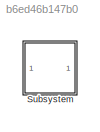
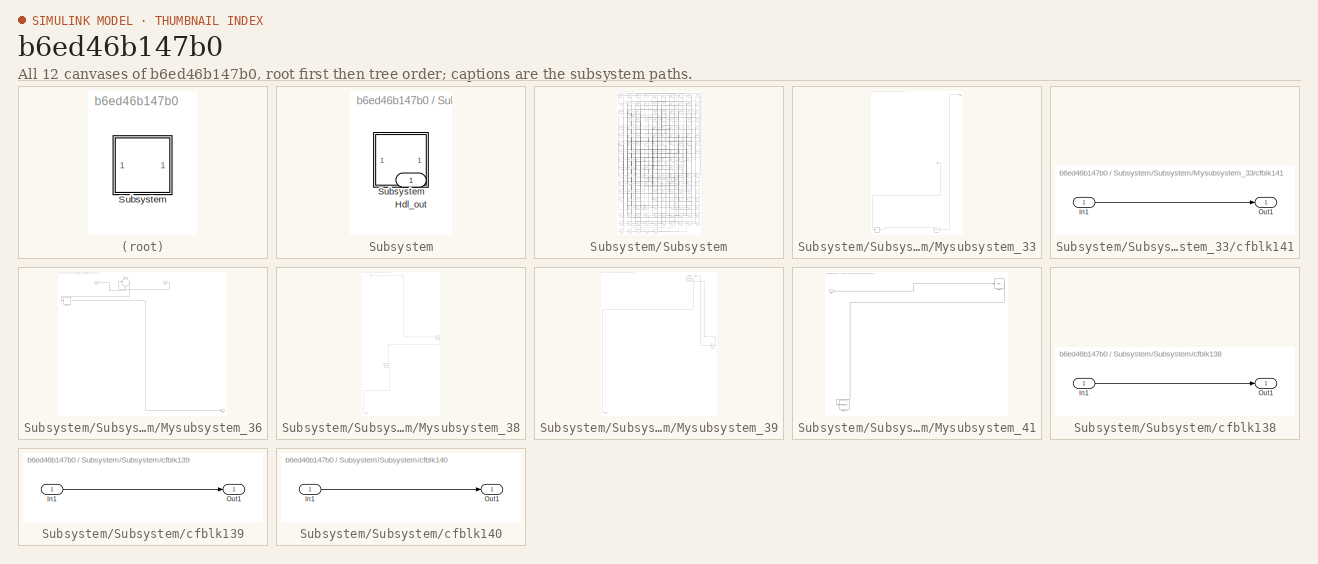
[diagram: thumbnail index - all 12 canvases of the model, root first then tree order]
MODEL slx_b6ed46b147b0
KIND model
CONFIG AbsTol = auto
CONFIG EnableMultiTasking = off
CONFIG FixedStep = auto
CONFIG MaxStep = auto
CONFIG MinStep = auto
CONFIG RelTol = 1e-3
CONFIG SampleTimeConstraint = Unconstrained
CONFIG SolverName = VariableStepAuto
CONFIG StartTime = 0.0
CONFIG StopTime = 10.0
BLOCK [SubSystem] Subsystem
BLOCK [Outport] Subsystem/Hdl_out
  OutDataTypeStr = uint8
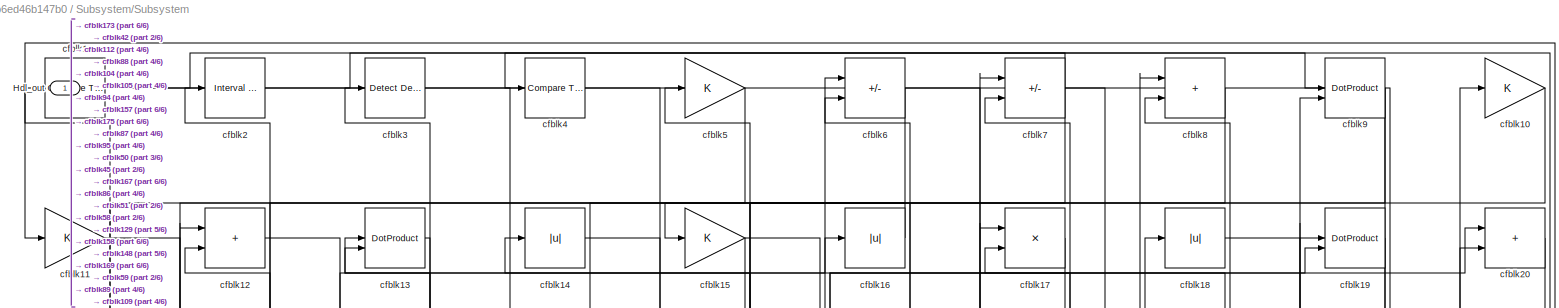
[diagram: Subsystem/Subsystem - part 1/6, full width, top band]
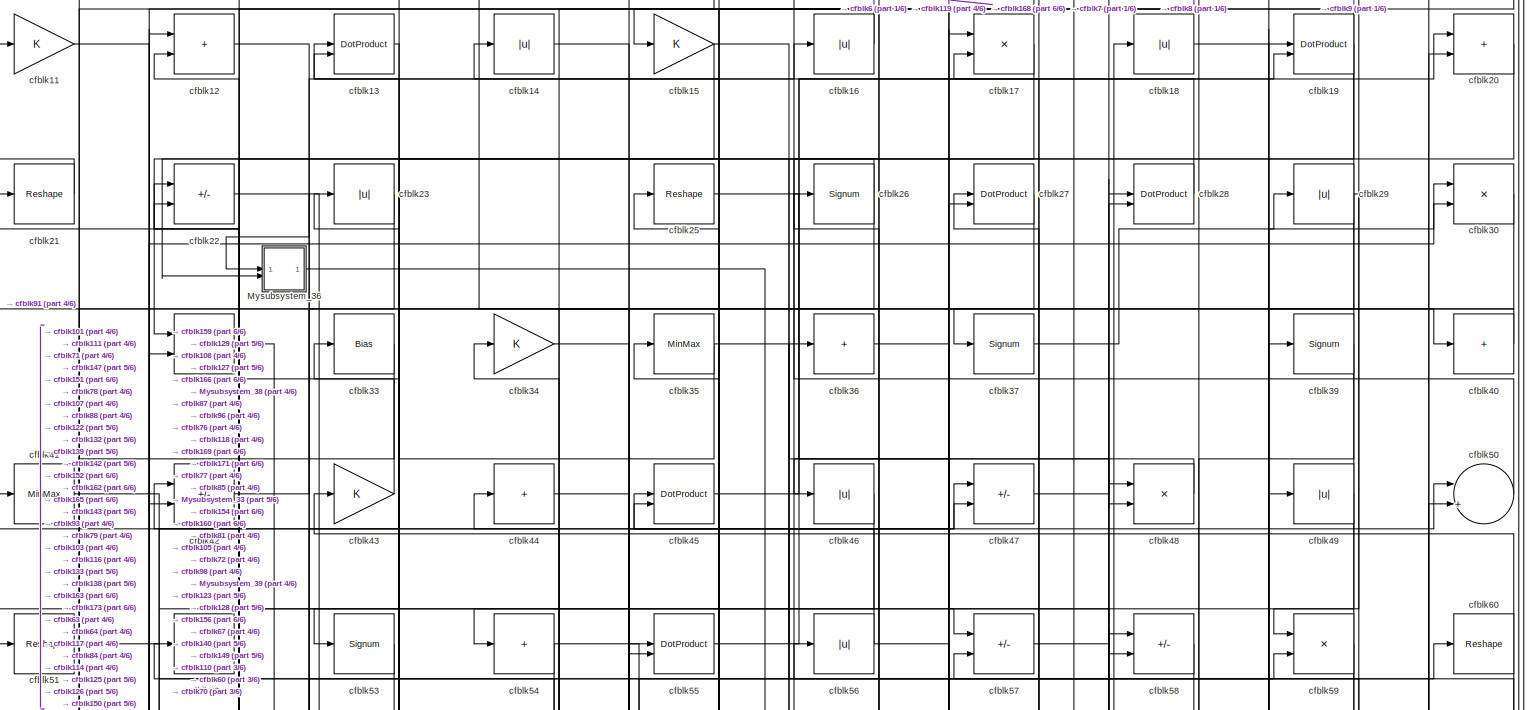
[diagram: Subsystem/Subsystem - part 2/6, full width, top band]
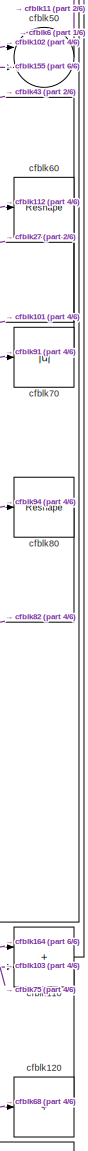
[diagram: Subsystem/Subsystem - part 3/6, middle right region]
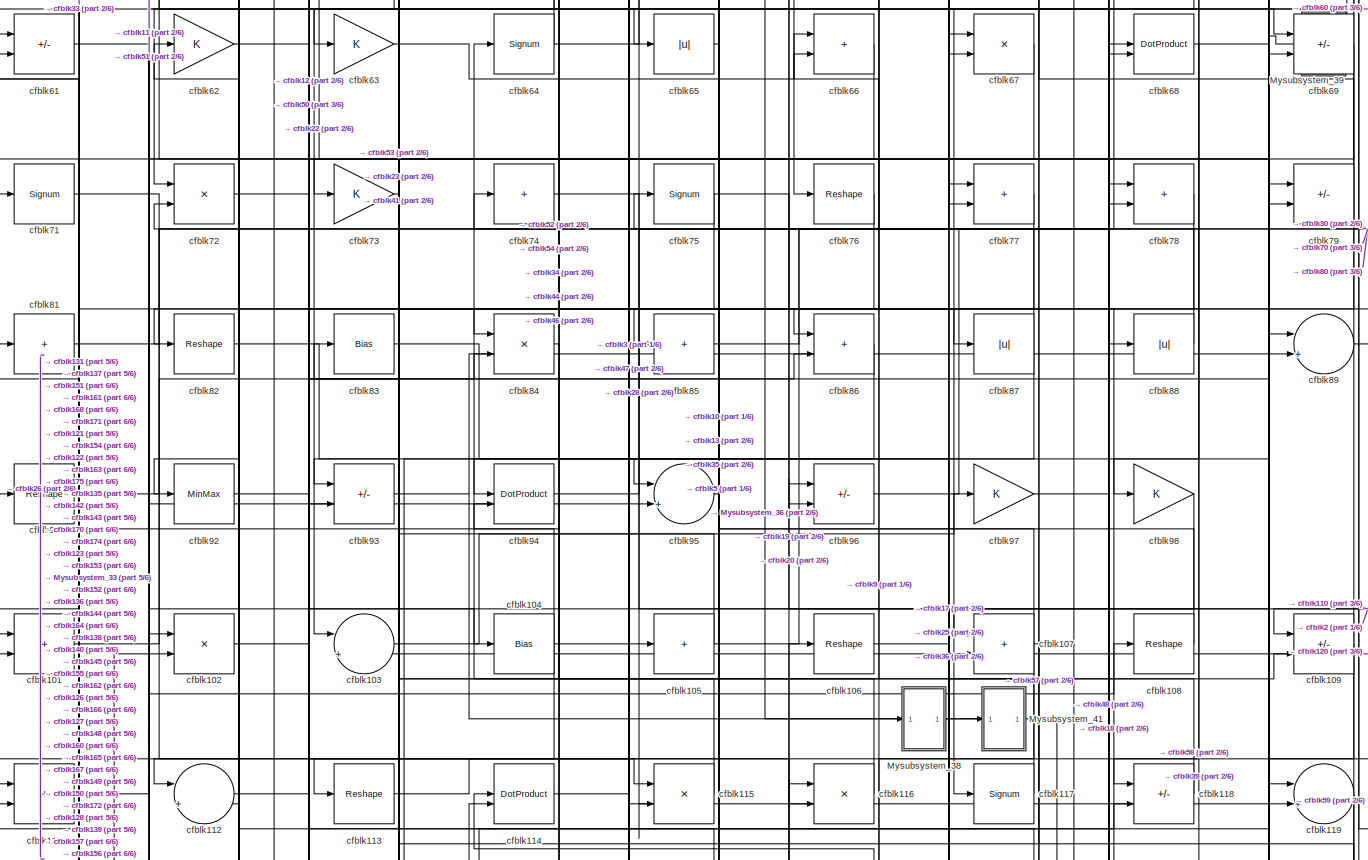
[diagram: Subsystem/Subsystem - part 4/6, full width, middle band]
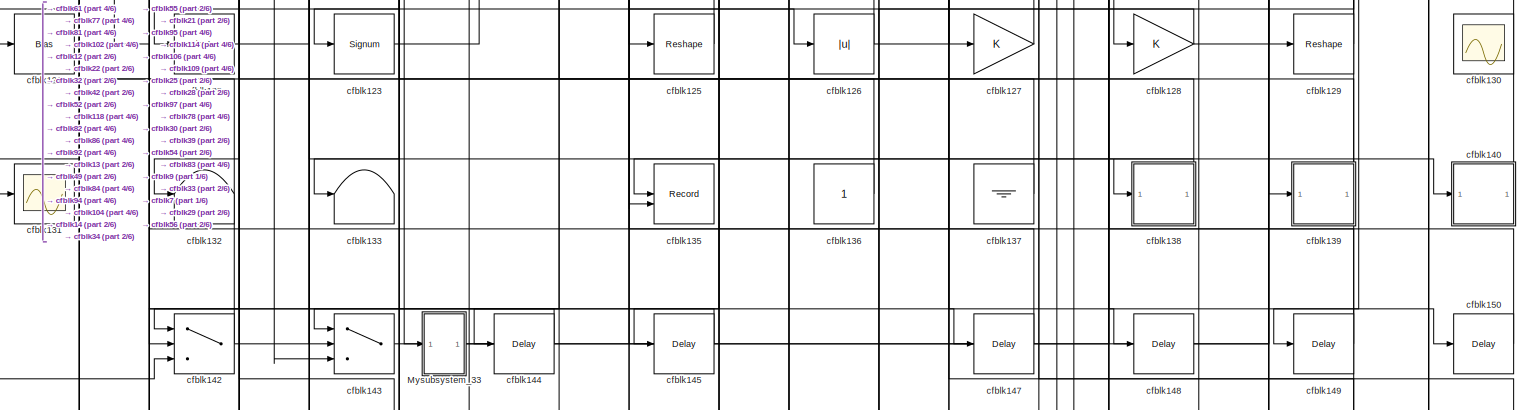
[diagram: Subsystem/Subsystem - part 5/6, full width, bottom band]
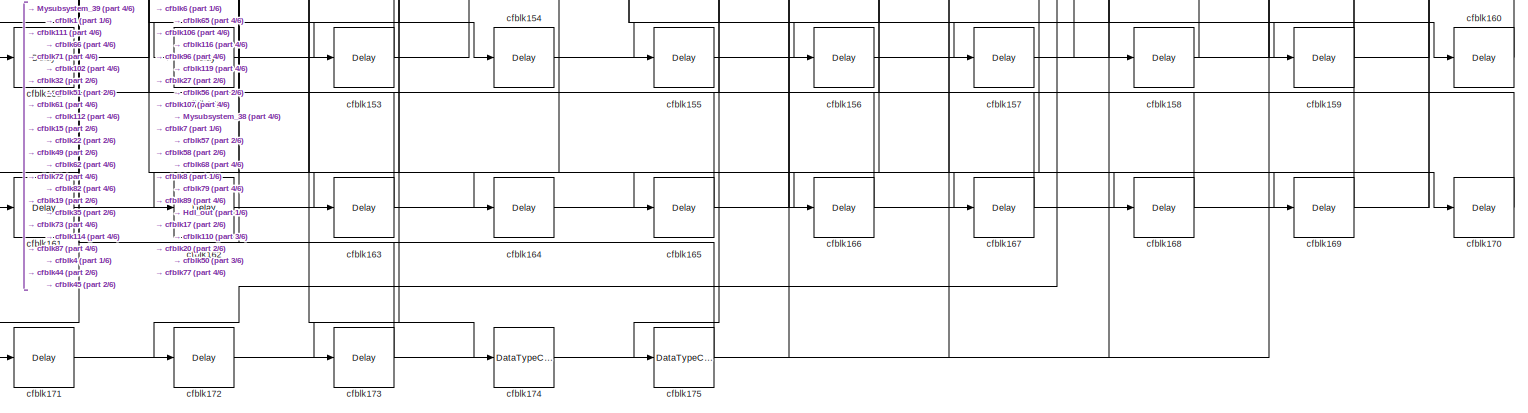
[diagram: Subsystem/Subsystem - part 6/6, full width, bottom band]
BLOCK [SubSystem] Subsystem/Subsystem
BLOCK [Outport] Subsystem/Subsystem/Hdl_out
  OutDataTypeStr = uint8
BLOCK [SubSystem] Subsystem/Subsystem/Mysubsystem_33
  RTWFcnName = Mysubsystem_33
  RTWFcnNameOpts = User specified
  RTWFileNameOpts = Use function name
  RTWSystemCode = Reusable function
  TreatAsAtomicUnit = on
BLOCK [Inport] Subsystem/Subsystem/Mysubsystem_33/In1
BLOCK [Outport] Subsystem/Subsystem/Mysubsystem_33/Out1
BLOCK [SubSystem] Subsystem/Subsystem/Mysubsystem_33/cfblk141
  LibrarySourceBlock = hdlsllib/Ports &\nSubsystems/Subsystem
BLOCK [Inport] Subsystem/Subsystem/Mysubsystem_33/cfblk141/In1
BLOCK [Outport] Subsystem/Subsystem/Mysubsystem_33/cfblk141/Out1
BLOCK [Delay] Subsystem/Subsystem/Mysubsystem_33/cfblk146
  InputPortMap = u0
  SampleTime = 1
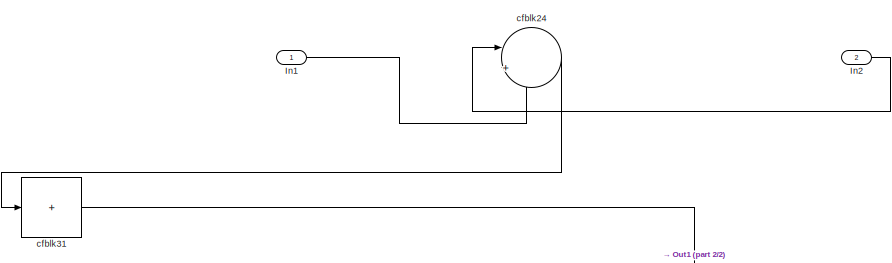
[diagram: Subsystem/Subsystem/Mysubsystem_36 - part 1/2, top center region]
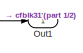
[diagram: Subsystem/Subsystem/Mysubsystem_36 - part 2/2, bottom right region]
BLOCK [SubSystem] Subsystem/Subsystem/Mysubsystem_36
  RTWFcnName = Mysubsystem_36
  RTWFcnNameOpts = User specified
  RTWFileNameOpts = Use function name
  RTWSystemCode = Reusable function
  TreatAsAtomicUnit = on
BLOCK [Inport] Subsystem/Subsystem/Mysubsystem_36/In1
BLOCK [Inport] Subsystem/Subsystem/Mysubsystem_36/In2
  Port = 2
BLOCK [Outport] Subsystem/Subsystem/Mysubsystem_36/Out1
BLOCK [Sum] Subsystem/Subsystem/Mysubsystem_36/cfblk24
  Inputs = |++
BLOCK [Sum] Subsystem/Subsystem/Mysubsystem_36/cfblk31
  IconShape = rectangular
  Inputs = +
BLOCK [SubSystem] Subsystem/Subsystem/Mysubsystem_38
  RTWFcnName = Mysubsystem_38
  RTWFcnNameOpts = User specified
  RTWFileNameOpts = Use function name
  RTWSystemCode = Reusable function
  TreatAsAtomicUnit = on
BLOCK [Inport] Subsystem/Subsystem/Mysubsystem_38/In1
BLOCK [Outport] Subsystem/Subsystem/Mysubsystem_38/Out1
BLOCK [MinMax] Subsystem/Subsystem/Mysubsystem_38/cfblk124
BLOCK [MinMax] Subsystem/Subsystem/Mysubsystem_38/cfblk99
BLOCK [SubSystem] Subsystem/Subsystem/Mysubsystem_39
  RTWFcnName = Mysubsystem_39
  RTWFcnNameOpts = User specified
  RTWFileNameOpts = Use function name
  RTWSystemCode = Reusable function
  TreatAsAtomicUnit = on
BLOCK [Inport] Subsystem/Subsystem/Mysubsystem_39/In1
BLOCK [Outport] Subsystem/Subsystem/Mysubsystem_39/Out1
BLOCK [Gain] Subsystem/Subsystem/Mysubsystem_39/cfblk100
BLOCK [MinMax] Subsystem/Subsystem/Mysubsystem_39/cfblk38
BLOCK [SubSystem] Subsystem/Subsystem/Mysubsystem_41
  RTWFcnName = Mysubsystem_41
  RTWFcnNameOpts = User specified
  RTWFileNameOpts = Use function name
  RTWSystemCode = Reusable function
  TreatAsAtomicUnit = on
BLOCK [Inport] Subsystem/Subsystem/Mysubsystem_41/In1
BLOCK [ToWorkspace] Subsystem/Subsystem/Mysubsystem_41/cfblk134
  MaxDataPoints = inf
  SampleTime = -1
  SaveFormat = Timeseries
  VariableName = simout
BLOCK [Bias] Subsystem/Subsystem/Mysubsystem_41/cfblk90
  Bias = 0.0
  SaturateOnIntegerOverflow = off
BLOCK [Reference] Subsystem/Subsystem/cfblk1  REF=hdlsllib/Logic and Bit
Operations/Compare
To Zero
  SourceBlock = hdlsllib/Logic and Bit\nOperations/Compare\nTo Zero
  SourceType = Compare To Zero
BLOCK [Gain] Subsystem/Subsystem/cfblk10
  OutDataTypeStr = uint8
BLOCK [Sum] Subsystem/Subsystem/cfblk101
  IconShape = rectangular
  OutDataTypeStr = uint8
BLOCK [Product] Subsystem/Subsystem/cfblk102
  Inputs = */
  OutDataTypeStr = uint8
  RndMeth = Zero
  SaturateOnIntegerOverflow = on
BLOCK [Sum] Subsystem/Subsystem/cfblk103
  Inputs = |++
  OutDataTypeStr = uint8
BLOCK [Bias] Subsystem/Subsystem/cfblk104
  Bias = 0.0
  SaturateOnIntegerOverflow = off
BLOCK [Sum] Subsystem/Subsystem/cfblk105
  IconShape = rectangular
  Inputs = +
  OutDataTypeStr = uint8
BLOCK [Reshape] Subsystem/Subsystem/cfblk106
BLOCK [Sum] Subsystem/Subsystem/cfblk107
  IconShape = rectangular
  OutDataTypeStr = uint8
BLOCK [Reshape] Subsystem/Subsystem/cfblk108
BLOCK [Sum] Subsystem/Subsystem/cfblk109
  IconShape = rectangular
  Inputs = +-
  OutDataTypeStr = uint8
BLOCK [Gain] Subsystem/Subsystem/cfblk11
  OutDataTypeStr = uint8
BLOCK [Sum] Subsystem/Subsystem/cfblk110
  IconShape = rectangular
  OutDataTypeStr = uint8
BLOCK [Sum] Subsystem/Subsystem/cfblk111
  IconShape = rectangular
  OutDataTypeStr = uint8
BLOCK [Sum] Subsystem/Subsystem/cfblk112
  Inputs = |++
  OutDataTypeStr = uint8
BLOCK [Reshape] Subsystem/Subsystem/cfblk113
BLOCK [DotProduct] Subsystem/Subsystem/cfblk114
  OutDataTypeStr = uint8
BLOCK [Product] Subsystem/Subsystem/cfblk115
  Inputs = */
  OutDataTypeStr = uint8
  RndMeth = Zero
  SaturateOnIntegerOverflow = on
BLOCK [Product] Subsystem/Subsystem/cfblk116
  Inputs = */
  OutDataTypeStr = uint8
  RndMeth = Zero
  SaturateOnIntegerOverflow = on
BLOCK [Signum] Subsystem/Subsystem/cfblk117
BLOCK [Sum] Subsystem/Subsystem/cfblk118
  IconShape = rectangular
  Inputs = +-
  OutDataTypeStr = uint8
BLOCK [Sum] Subsystem/Subsystem/cfblk119
  Inputs = |++
  OutDataTypeStr = uint8
BLOCK [Sum] Subsystem/Subsystem/cfblk12
  IconShape = rectangular
  OutDataTypeStr = uint8
BLOCK [Sum] Subsystem/Subsystem/cfblk120
  IconShape = rectangular
  Inputs = +
  OutDataTypeStr = uint8
BLOCK [Bias] Subsystem/Subsystem/cfblk121
  Bias = 0.0
  SaturateOnIntegerOverflow = off
BLOCK [MinMax] Subsystem/Subsystem/cfblk122
  OutDataTypeStr = uint8
BLOCK [Signum] Subsystem/Subsystem/cfblk123
BLOCK [Reshape] Subsystem/Subsystem/cfblk125
BLOCK [Abs] Subsystem/Subsystem/cfblk126
  OutDataTypeStr = uint8
  SaturateOnIntegerOverflow = off
BLOCK [Gain] Subsystem/Subsystem/cfblk127
  OutDataTypeStr = uint8
BLOCK [Gain] Subsystem/Subsystem/cfblk128
  OutDataTypeStr = uint8
BLOCK [Reshape] Subsystem/Subsystem/cfblk129
BLOCK [DotProduct] Subsystem/Subsystem/cfblk13
  OutDataTypeStr = uint8
BLOCK [Scope] Subsystem/Subsystem/cfblk130
  Floating = on
  NumInputPorts = 1
  ScopeSpecificationString = Simulink.scopes.TimeScopeBlockCfg('CurrentConfiguration', extmgr.ConfigurationSet(extmgr.Configuration('Core','General UI',true,'FigureColor',[0.156862745098039 0.156862745098039 0.156862745098039]),extmgr.Configuration('Core','Source UI',true),extmgr.Configuration('Sources','WiredSimulink',true,'DataLoggingVariableName','ScopeData1','DataLoggingSaveFormat','StructureWithTime','DataLoggingLimitDat...<+2713ch>
BLOCK [Scope] Subsystem/Subsystem/cfblk131
  Floating = off
  NumInputPorts = 1
  ScopeSpecificationString = Simulink.scopes.TimeScopeBlockCfg('CurrentConfiguration', extmgr.ConfigurationSet(extmgr.Configuration('Core','General UI',true),extmgr.Configuration('Core','Source UI',true),extmgr.Configuration('Sources','WiredSimulink',true,'DataLoggingSaveFormat','Array','DataLoggingLimitDataPoints',true,'DataLoggingDecimation','1'),extmgr.Configuration('Visuals','Time Domain',true,'DisplayPropertyDefaults',st...<+829ch>
BLOCK [Terminator] Subsystem/Subsystem/cfblk132
BLOCK [Terminator] Subsystem/Subsystem/cfblk133
BLOCK [Record] Subsystem/Subsystem/cfblk135
  CompatibilityTag = XY
  FileSettingsInternal = {"entries":[{"content":{"excelSettings":{"content":{},"type":"Streamout.ExcelSettings"}},"type":"Streamout.FileSettingStorage","uuid":""}],"packageUris":["http:\/\/schema.mathworks.com\/mf0\/streamout_blocks\/R2020a"],"version":"1.0"}
  Layout = [1 1]
  SignalsInternal = {"entries":[{"content":{"signals":[{"content":{"blockPath":[],"dimensions":[1],"domain":"","lineColor":"#a2142f","plots":[1],"port":1,"signalID":50107,"signalName":"cfblk138"},"type":"RecordBlkView.Signal","uuid":""},{"content":{"blockPath":[],"dimensions":[1],"domain":"","lineColor":"#139fff","plots":[1],"port":2,"signalID":50110,"signalName":"cfblk92"},"type":"RecordBlkView.Signal","uuid":""}]},...<+143ch>
  VisualizationBindings = {"xyplotplugin":{"info":[{"series":[{"bindingParametersList":[{"parameter":"X-Axis","signalID":50107,"signalName":"cfblk138"},{"parameter":"Y-Axis","signalID":50110,"signalName":"cfblk92"}],"seriesID":33530}],"subplotID":1}]}}
  st = -1
BLOCK [Constant] Subsystem/Subsystem/cfblk136
  OutDataTypeStr = uint8
  SampleTime = -1
BLOCK [Ground] Subsystem/Subsystem/cfblk137
BLOCK [SubSystem] Subsystem/Subsystem/cfblk138
  LibrarySourceBlock = hdlsllib/Ports &\nSubsystems/Subsystem
BLOCK [Inport] Subsystem/Subsystem/cfblk138/In1
BLOCK [Outport] Subsystem/Subsystem/cfblk138/Out1
BLOCK [SubSystem] Subsystem/Subsystem/cfblk139
  LibrarySourceBlock = hdlsllib/Ports &\nSubsystems/Subsystem
BLOCK [Inport] Subsystem/Subsystem/cfblk139/In1
BLOCK [Outport] Subsystem/Subsystem/cfblk139/Out1
BLOCK [Abs] Subsystem/Subsystem/cfblk14
  OutDataTypeStr = uint8
  SaturateOnIntegerOverflow = off
BLOCK [SubSystem] Subsystem/Subsystem/cfblk140
  LibrarySourceBlock = hdlsllib/Ports &\nSubsystems/Subsystem
BLOCK [Inport] Subsystem/Subsystem/cfblk140/In1
BLOCK [Outport] Subsystem/Subsystem/cfblk140/Out1
BLOCK [Switch] Subsystem/Subsystem/cfblk142
  InputSameDT = off
  OutDataTypeStr = uint8
  SaturateOnIntegerOverflow = off
BLOCK [Switch] Subsystem/Subsystem/cfblk143
  InputSameDT = off
  OutDataTypeStr = uint8
  SaturateOnIntegerOverflow = off
BLOCK [Delay] Subsystem/Subsystem/cfblk144
  InputPortMap = u0
  SampleTime = 1
BLOCK [Delay] Subsystem/Subsystem/cfblk145
  InputPortMap = u0
  SampleTime = 1
BLOCK [Delay] Subsystem/Subsystem/cfblk147
  InputPortMap = u0
  SampleTime = 1
BLOCK [Delay] Subsystem/Subsystem/cfblk148
  InputPortMap = u0
  SampleTime = 1
BLOCK [Delay] Subsystem/Subsystem/cfblk149
  InputPortMap = u0
  SampleTime = 1
BLOCK [Gain] Subsystem/Subsystem/cfblk15
  OutDataTypeStr = uint8
BLOCK [Delay] Subsystem/Subsystem/cfblk150
  InputPortMap = u0
  SampleTime = 1
BLOCK [Delay] Subsystem/Subsystem/cfblk151
  InputPortMap = u0
  SampleTime = 1
BLOCK [Delay] Subsystem/Subsystem/cfblk152
  InputPortMap = u0
  SampleTime = 1
BLOCK [Delay] Subsystem/Subsystem/cfblk153
  InputPortMap = u0
  SampleTime = 1
BLOCK [Delay] Subsystem/Subsystem/cfblk154
  InputPortMap = u0
  SampleTime = 1
BLOCK [Delay] Subsystem/Subsystem/cfblk155
  InputPortMap = u0
  SampleTime = 1
BLOCK [Delay] Subsystem/Subsystem/cfblk156
  InputPortMap = u0
  SampleTime = 1
BLOCK [Delay] Subsystem/Subsystem/cfblk157
  InputPortMap = u0
  SampleTime = 1
BLOCK [Delay] Subsystem/Subsystem/cfblk158
  InputPortMap = u0
  SampleTime = 1
BLOCK [Delay] Subsystem/Subsystem/cfblk159
  InputPortMap = u0
  SampleTime = 1
BLOCK [Abs] Subsystem/Subsystem/cfblk16
  OutDataTypeStr = uint8
  SaturateOnIntegerOverflow = off
BLOCK [Delay] Subsystem/Subsystem/cfblk160
  InputPortMap = u0
  SampleTime = 1
BLOCK [Delay] Subsystem/Subsystem/cfblk161
  InputPortMap = u0
  SampleTime = 1
BLOCK [Delay] Subsystem/Subsystem/cfblk162
  InputPortMap = u0
  SampleTime = 1
BLOCK [Delay] Subsystem/Subsystem/cfblk163
  InputPortMap = u0
  SampleTime = 1
BLOCK [Delay] Subsystem/Subsystem/cfblk164
  InputPortMap = u0
  SampleTime = 1
BLOCK [Delay] Subsystem/Subsystem/cfblk165
  InputPortMap = u0
  SampleTime = 1
BLOCK [Delay] Subsystem/Subsystem/cfblk166
  InputPortMap = u0
  SampleTime = 1
BLOCK [Delay] Subsystem/Subsystem/cfblk167
  InputPortMap = u0
  SampleTime = 1
BLOCK [Delay] Subsystem/Subsystem/cfblk168
  InputPortMap = u0
  SampleTime = 1
BLOCK [Delay] Subsystem/Subsystem/cfblk169
  InputPortMap = u0
  SampleTime = 1
BLOCK [Product] Subsystem/Subsystem/cfblk17
  Inputs = */
  OutDataTypeStr = uint8
  RndMeth = Zero
  SaturateOnIntegerOverflow = on
BLOCK [Delay] Subsystem/Subsystem/cfblk170
  InputPortMap = u0
  SampleTime = 1
BLOCK [Delay] Subsystem/Subsystem/cfblk171
  InputPortMap = u0
  SampleTime = 1
BLOCK [Delay] Subsystem/Subsystem/cfblk172
  InputPortMap = u0
  SampleTime = 1
BLOCK [Delay] Subsystem/Subsystem/cfblk173
  InputPortMap = u0
  SampleTime = 1
BLOCK [DataTypeConversion] Subsystem/Subsystem/cfblk174
  OutDataTypeStr = uint8
  RndMeth = Floor
  SaturateOnIntegerOverflow = off
BLOCK [DataTypeConversion] Subsystem/Subsystem/cfblk175
  OutDataTypeStr = uint8
  RndMeth = Floor
  SaturateOnIntegerOverflow = off
BLOCK [Abs] Subsystem/Subsystem/cfblk18
  OutDataTypeStr = uint8
  SaturateOnIntegerOverflow = off
BLOCK [DotProduct] Subsystem/Subsystem/cfblk19
  OutDataTypeStr = uint8
BLOCK [Reference] Subsystem/Subsystem/cfblk2  REF=hdlsllib/Logic and Bit
Operations/Interval Test
  SourceBlock = hdlsllib/Logic and Bit\nOperations/Interval Test
  SourceType = Interval Test
BLOCK [Sum] Subsystem/Subsystem/cfblk20
  IconShape = rectangular
  OutDataTypeStr = uint8
BLOCK [Reshape] Subsystem/Subsystem/cfblk21
BLOCK [Sum] Subsystem/Subsystem/cfblk22
  IconShape = rectangular
  Inputs = +-
  OutDataTypeStr = uint8
BLOCK [Abs] Subsystem/Subsystem/cfblk23
  OutDataTypeStr = uint8
  SaturateOnIntegerOverflow = off
BLOCK [Reshape] Subsystem/Subsystem/cfblk25
BLOCK [Signum] Subsystem/Subsystem/cfblk26
BLOCK [DotProduct] Subsystem/Subsystem/cfblk27
  OutDataTypeStr = uint8
BLOCK [DotProduct] Subsystem/Subsystem/cfblk28
  OutDataTypeStr = uint8
BLOCK [Abs] Subsystem/Subsystem/cfblk29
  OutDataTypeStr = uint8
  SaturateOnIntegerOverflow = off
BLOCK [Reference] Subsystem/Subsystem/cfblk3  REF=simulink/Logic and Bit
Operations/Detect
Decrease
  LibrarySourceBlock = hdlsllib/Logic and Bit\nOperations/Detect\nDecrease
  SourceBlock = simulink/Logic and Bit\nOperations/Detect\nDecrease
  SourceType = Detect Decrease
BLOCK [Product] Subsystem/Subsystem/cfblk30
  Inputs = */
  OutDataTypeStr = uint8
  RndMeth = Zero
  SaturateOnIntegerOverflow = on
BLOCK [Sum] Subsystem/Subsystem/cfblk32
  IconShape = rectangular
  Inputs = +-
  OutDataTypeStr = uint8
BLOCK [Bias] Subsystem/Subsystem/cfblk33
  Bias = 0.0
  SaturateOnIntegerOverflow = off
BLOCK [Gain] Subsystem/Subsystem/cfblk34
  OutDataTypeStr = uint8
BLOCK [MinMax] Subsystem/Subsystem/cfblk35
  OutDataTypeStr = uint8
BLOCK [Sum] Subsystem/Subsystem/cfblk36
  IconShape = rectangular
  Inputs = +
  OutDataTypeStr = uint8
BLOCK [Signum] Subsystem/Subsystem/cfblk37
BLOCK [Signum] Subsystem/Subsystem/cfblk39
BLOCK [Reference] Subsystem/Subsystem/cfblk4  REF=hdlsllib/Logic and Bit
Operations/Compare
To Constant
  SourceBlock = hdlsllib/Logic and Bit\nOperations/Compare\nTo Constant
  SourceType = Compare To Constant
BLOCK [Sum] Subsystem/Subsystem/cfblk40
  IconShape = rectangular
  Inputs = +
  OutDataTypeStr = uint8
BLOCK [MinMax] Subsystem/Subsystem/cfblk41
  OutDataTypeStr = uint8
BLOCK [Sum] Subsystem/Subsystem/cfblk42
  IconShape = rectangular
  Inputs = +-
  OutDataTypeStr = uint8
BLOCK [Gain] Subsystem/Subsystem/cfblk43
  OutDataTypeStr = uint8
BLOCK [Sum] Subsystem/Subsystem/cfblk44
  IconShape = rectangular
  Inputs = +
  OutDataTypeStr = uint8
BLOCK [DotProduct] Subsystem/Subsystem/cfblk45
  OutDataTypeStr = uint8
BLOCK [Abs] Subsystem/Subsystem/cfblk46
  OutDataTypeStr = uint8
  SaturateOnIntegerOverflow = off
BLOCK [Sum] Subsystem/Subsystem/cfblk47
  IconShape = rectangular
  Inputs = +-
  OutDataTypeStr = uint8
BLOCK [Product] Subsystem/Subsystem/cfblk48
  Inputs = */
  OutDataTypeStr = uint8
  RndMeth = Zero
  SaturateOnIntegerOverflow = on
BLOCK [Abs] Subsystem/Subsystem/cfblk49
  OutDataTypeStr = uint8
  SaturateOnIntegerOverflow = off
BLOCK [Gain] Subsystem/Subsystem/cfblk5
  OutDataTypeStr = uint8
BLOCK [Sum] Subsystem/Subsystem/cfblk50
  Inputs = |++
  OutDataTypeStr = uint8
BLOCK [Reshape] Subsystem/Subsystem/cfblk51
BLOCK [Reshape] Subsystem/Subsystem/cfblk52
BLOCK [Signum] Subsystem/Subsystem/cfblk53
BLOCK [Sum] Subsystem/Subsystem/cfblk54
  IconShape = rectangular
  Inputs = +
  OutDataTypeStr = uint8
BLOCK [DotProduct] Subsystem/Subsystem/cfblk55
  OutDataTypeStr = uint8
BLOCK [Abs] Subsystem/Subsystem/cfblk56
  OutDataTypeStr = uint8
  SaturateOnIntegerOverflow = off
BLOCK [Sum] Subsystem/Subsystem/cfblk57
  IconShape = rectangular
  Inputs = +-
  OutDataTypeStr = uint8
BLOCK [Sum] Subsystem/Subsystem/cfblk58
  IconShape = rectangular
  Inputs = +-
  OutDataTypeStr = uint8
BLOCK [Product] Subsystem/Subsystem/cfblk59
  Inputs = */
  OutDataTypeStr = uint8
  RndMeth = Zero
  SaturateOnIntegerOverflow = on
BLOCK [Sum] Subsystem/Subsystem/cfblk6
  IconShape = rectangular
  Inputs = +-
  OutDataTypeStr = uint8
BLOCK [Reshape] Subsystem/Subsystem/cfblk60
BLOCK [Sum] Subsystem/Subsystem/cfblk61
  IconShape = rectangular
  Inputs = +-
  OutDataTypeStr = uint8
BLOCK [Gain] Subsystem/Subsystem/cfblk62
  OutDataTypeStr = uint8
BLOCK [Gain] Subsystem/Subsystem/cfblk63
  OutDataTypeStr = uint8
BLOCK [Signum] Subsystem/Subsystem/cfblk64
BLOCK [Abs] Subsystem/Subsystem/cfblk65
  OutDataTypeStr = uint8
  SaturateOnIntegerOverflow = off
BLOCK [Sum] Subsystem/Subsystem/cfblk66
  IconShape = rectangular
  OutDataTypeStr = uint8
BLOCK [Product] Subsystem/Subsystem/cfblk67
  Inputs = */
  OutDataTypeStr = uint8
  RndMeth = Zero
  SaturateOnIntegerOverflow = on
BLOCK [DotProduct] Subsystem/Subsystem/cfblk68
  OutDataTypeStr = uint8
BLOCK [Sum] Subsystem/Subsystem/cfblk69
  IconShape = rectangular
  Inputs = +-
  OutDataTypeStr = uint8
BLOCK [Sum] Subsystem/Subsystem/cfblk7
  IconShape = rectangular
  Inputs = +-
  OutDataTypeStr = uint8
BLOCK [Abs] Subsystem/Subsystem/cfblk70
  OutDataTypeStr = uint8
  SaturateOnIntegerOverflow = off
BLOCK [Signum] Subsystem/Subsystem/cfblk71
BLOCK [Product] Subsystem/Subsystem/cfblk72
  Inputs = */
  OutDataTypeStr = uint8
  RndMeth = Zero
  SaturateOnIntegerOverflow = on
BLOCK [Gain] Subsystem/Subsystem/cfblk73
  OutDataTypeStr = uint8
BLOCK [Sum] Subsystem/Subsystem/cfblk74
  IconShape = rectangular
  Inputs = +
  OutDataTypeStr = uint8
BLOCK [Signum] Subsystem/Subsystem/cfblk75
BLOCK [Reshape] Subsystem/Subsystem/cfblk76
BLOCK [Sum] Subsystem/Subsystem/cfblk77
  IconShape = rectangular
  OutDataTypeStr = uint8
BLOCK [Sum] Subsystem/Subsystem/cfblk78
  IconShape = rectangular
  OutDataTypeStr = uint8
BLOCK [Sum] Subsystem/Subsystem/cfblk79
  IconShape = rectangular
  Inputs = +-
  OutDataTypeStr = uint8
BLOCK [Sum] Subsystem/Subsystem/cfblk8
  IconShape = rectangular
  OutDataTypeStr = uint8
BLOCK [Reshape] Subsystem/Subsystem/cfblk80
BLOCK [Sum] Subsystem/Subsystem/cfblk81
  IconShape = rectangular
  Inputs = +
  OutDataTypeStr = uint8
BLOCK [Reshape] Subsystem/Subsystem/cfblk82
BLOCK [Bias] Subsystem/Subsystem/cfblk83
  Bias = 0.0
  SaturateOnIntegerOverflow = off
BLOCK [Product] Subsystem/Subsystem/cfblk84
  Inputs = */
  OutDataTypeStr = uint8
  RndMeth = Zero
  SaturateOnIntegerOverflow = on
BLOCK [Sum] Subsystem/Subsystem/cfblk85
  IconShape = rectangular
  Inputs = +
  OutDataTypeStr = uint8
BLOCK [Sum] Subsystem/Subsystem/cfblk86
  IconShape = rectangular
  OutDataTypeStr = uint8
BLOCK [Abs] Subsystem/Subsystem/cfblk87
  OutDataTypeStr = uint8
  SaturateOnIntegerOverflow = off
BLOCK [Abs] Subsystem/Subsystem/cfblk88
  OutDataTypeStr = uint8
  SaturateOnIntegerOverflow = off
BLOCK [Sum] Subsystem/Subsystem/cfblk89
  Inputs = |++
  OutDataTypeStr = uint8
BLOCK [DotProduct] Subsystem/Subsystem/cfblk9
  OutDataTypeStr = uint8
BLOCK [Reshape] Subsystem/Subsystem/cfblk91
BLOCK [MinMax] Subsystem/Subsystem/cfblk92
  OutDataTypeStr = uint8
BLOCK [Sum] Subsystem/Subsystem/cfblk93
  IconShape = rectangular
  Inputs = +-
  OutDataTypeStr = uint8
BLOCK [DotProduct] Subsystem/Subsystem/cfblk94
  OutDataTypeStr = uint8
BLOCK [Sum] Subsystem/Subsystem/cfblk95
  Inputs = |++
  OutDataTypeStr = uint8
BLOCK [Sum] Subsystem/Subsystem/cfblk96
  IconShape = rectangular
  Inputs = +-
  OutDataTypeStr = uint8
BLOCK [Gain] Subsystem/Subsystem/cfblk97
  OutDataTypeStr = uint8
BLOCK [Gain] Subsystem/Subsystem/cfblk98
  OutDataTypeStr = uint8
LINE Subsystem/Subsystem/Mysubsystem_33/In1:1 -> Subsystem/Subsystem/Mysubsystem_33/cfblk141:1
LINE Subsystem/Subsystem/Mysubsystem_33/cfblk141/In1:1 -> Subsystem/Subsystem/Mysubsystem_33/cfblk141/Out1:1
LINE Subsystem/Subsystem/Mysubsystem_33/cfblk141:1 -> Subsystem/Subsystem/Mysubsystem_33/cfblk146:1
LINE Subsystem/Subsystem/Mysubsystem_33/cfblk146:1 -> Subsystem/Subsystem/Mysubsystem_33/Out1:1
LINE Subsystem/Subsystem/Mysubsystem_33:1 -> Subsystem/Subsystem/cfblk28:1
LINE Subsystem/Subsystem/Mysubsystem_36/In1:1 -> Subsystem/Subsystem/Mysubsystem_36/cfblk24:2
LINE Subsystem/Subsystem/Mysubsystem_36/In2:1 -> Subsystem/Subsystem/Mysubsystem_36/cfblk24:1
LINE Subsystem/Subsystem/Mysubsystem_36/cfblk24:1 -> Subsystem/Subsystem/Mysubsystem_36/cfblk31:1
LINE Subsystem/Subsystem/Mysubsystem_36/cfblk31:1 -> Subsystem/Subsystem/Mysubsystem_36/Out1:1
LINE Subsystem/Subsystem/Mysubsystem_36:1 -> Subsystem/Subsystem/Mysubsystem_38:1
LINE Subsystem/Subsystem/Mysubsystem_38/In1:1 -> Subsystem/Subsystem/Mysubsystem_38/cfblk99:1
LINE Subsystem/Subsystem/Mysubsystem_38/cfblk124:1 -> Subsystem/Subsystem/Mysubsystem_38/Out1:1
LINE Subsystem/Subsystem/Mysubsystem_38/cfblk99:1 -> Subsystem/Subsystem/Mysubsystem_38/cfblk124:1
LINE Subsystem/Subsystem/Mysubsystem_38:1 -> Subsystem/Subsystem/cfblk172:1
LINE Subsystem/Subsystem/Mysubsystem_39/In1:1 -> Subsystem/Subsystem/Mysubsystem_39/cfblk100:1
LINE Subsystem/Subsystem/Mysubsystem_39/cfblk100:1 -> Subsystem/Subsystem/Mysubsystem_39/cfblk38:1
LINE Subsystem/Subsystem/Mysubsystem_39/cfblk38:1 -> Subsystem/Subsystem/Mysubsystem_39/Out1:1
LINE Subsystem/Subsystem/Mysubsystem_39:1 -> Subsystem/Subsystem/cfblk151:1
LINE Subsystem/Subsystem/Mysubsystem_41/In1:1 -> Subsystem/Subsystem/Mysubsystem_41/cfblk90:1
LINE Subsystem/Subsystem/Mysubsystem_41/cfblk90:1 -> Subsystem/Subsystem/Mysubsystem_41/cfblk134:1
LINE Subsystem/Subsystem/cfblk101:1 -> Subsystem/Subsystem/cfblk69:2
LINE Subsystem/Subsystem/cfblk102:1 -> Subsystem/Subsystem/cfblk50:1
LINE Subsystem/Subsystem/cfblk103:1 -> Subsystem/Subsystem/cfblk97:1
NET Subsystem/Subsystem/cfblk104:1 -> Subsystem/Subsystem/cfblk131:1, Subsystem/Subsystem/cfblk138:1, Subsystem/Subsystem/cfblk140:1, Subsystem/Subsystem/cfblk3:1, Subsystem/Subsystem/cfblk61:2
NET Subsystem/Subsystem/cfblk105:1 -> Subsystem/Subsystem/cfblk18:1, Subsystem/Subsystem/cfblk83:1
LINE Subsystem/Subsystem/cfblk106:1 -> Subsystem/Subsystem/cfblk148:1
NET Subsystem/Subsystem/cfblk107:1 -> Subsystem/Subsystem/cfblk166:1, Subsystem/Subsystem/cfblk167:1, Subsystem/Subsystem/cfblk35:1
NET Subsystem/Subsystem/cfblk108:1 -> Subsystem/Subsystem/cfblk13:1, Subsystem/Subsystem/cfblk75:1
LINE Subsystem/Subsystem/cfblk109:1 -> Subsystem/Subsystem/cfblk123:1
LINE Subsystem/Subsystem/cfblk10:1 -> Subsystem/Subsystem/cfblk95:1
LINE Subsystem/Subsystem/cfblk110:1 -> Subsystem/Subsystem/cfblk11:1
LINE Subsystem/Subsystem/cfblk111:1 -> Subsystem/Subsystem/cfblk108:1
LINE Subsystem/Subsystem/cfblk112:1 -> Subsystem/Subsystem/cfblk60:1
LINE Subsystem/Subsystem/cfblk113:1 -> Subsystem/Subsystem/cfblk115:1
LINE Subsystem/Subsystem/cfblk114:1 -> Subsystem/Subsystem/cfblk47:1
LINE Subsystem/Subsystem/cfblk115:1 -> Subsystem/Subsystem/cfblk64:1
LINE Subsystem/Subsystem/cfblk116:1 -> Subsystem/Subsystem/cfblk23:1
NET Subsystem/Subsystem/cfblk117:1 -> Subsystem/Subsystem/cfblk41:1, Subsystem/Subsystem/cfblk44:1, Subsystem/Subsystem/cfblk74:1
NET Subsystem/Subsystem/cfblk118:1 -> Subsystem/Subsystem/cfblk26:1, Subsystem/Subsystem/cfblk34:1
LINE Subsystem/Subsystem/cfblk119:1 -> Subsystem/Subsystem/cfblk156:1
LINE Subsystem/Subsystem/cfblk11:1 -> Subsystem/Subsystem/cfblk78:2
LINE Subsystem/Subsystem/cfblk120:1 -> Subsystem/Subsystem/cfblk103:2
NET Subsystem/Subsystem/cfblk121:1 -> Subsystem/Subsystem/cfblk102:2, Subsystem/Subsystem/cfblk147:1
NET Subsystem/Subsystem/cfblk122:1 -> Subsystem/Subsystem/cfblk118:2, Subsystem/Subsystem/cfblk22:1
LINE Subsystem/Subsystem/cfblk123:1 -> Subsystem/Subsystem/cfblk49:1
LINE Subsystem/Subsystem/cfblk125:1 -> Subsystem/Subsystem/cfblk21:1
NET Subsystem/Subsystem/cfblk126:1 -> Subsystem/Subsystem/cfblk109:2, Subsystem/Subsystem/cfblk114:1
LINE Subsystem/Subsystem/cfblk127:1 -> Subsystem/Subsystem/cfblk25:1
NET Subsystem/Subsystem/cfblk128:1 -> Subsystem/Subsystem/cfblk122:1, Subsystem/Subsystem/cfblk30:2
NET Subsystem/Subsystem/cfblk129:1 -> Subsystem/Subsystem/cfblk33:1, Subsystem/Subsystem/cfblk7:2
LINE Subsystem/Subsystem/cfblk12:1 -> Subsystem/Subsystem/cfblk116:2
LINE Subsystem/Subsystem/cfblk136:1 -> Subsystem/Subsystem/cfblk94:2
LINE Subsystem/Subsystem/cfblk137:1 -> Subsystem/Subsystem/cfblk61:1
LINE Subsystem/Subsystem/cfblk138/In1:1 -> Subsystem/Subsystem/cfblk138/Out1:1
NET Subsystem/Subsystem/cfblk138:1 -> Subsystem/Subsystem/cfblk135:1, Subsystem/Subsystem/cfblk13:2
LINE Subsystem/Subsystem/cfblk139/In1:1 -> Subsystem/Subsystem/cfblk139/Out1:1
LINE Subsystem/Subsystem/cfblk139:1 -> Subsystem/Subsystem/cfblk42:1
LINE Subsystem/Subsystem/cfblk13:1 -> Subsystem/Subsystem/cfblk133:1
LINE Subsystem/Subsystem/cfblk140/In1:1 -> Subsystem/Subsystem/cfblk140/Out1:1
LINE Subsystem/Subsystem/cfblk140:1 -> Subsystem/Subsystem/cfblk56:1
NET Subsystem/Subsystem/cfblk142:1 -> Subsystem/Subsystem/cfblk81:1, Subsystem/Subsystem/cfblk86:2
NET Subsystem/Subsystem/cfblk143:1 -> Subsystem/Subsystem/cfblk39:1, Subsystem/Subsystem/cfblk55:2
LINE Subsystem/Subsystem/cfblk144:1 -> Subsystem/Subsystem/cfblk142:2
LINE Subsystem/Subsystem/cfblk145:1 -> Subsystem/Subsystem/cfblk143:1
LINE Subsystem/Subsystem/cfblk147:1 -> Subsystem/Subsystem/cfblk12:1
LINE Subsystem/Subsystem/cfblk148:1 -> Subsystem/Subsystem/cfblk9:2
LINE Subsystem/Subsystem/cfblk149:1 -> Subsystem/Subsystem/cfblk78:1
LINE Subsystem/Subsystem/cfblk14:1 -> Subsystem/Subsystem/cfblk125:1
LINE Subsystem/Subsystem/cfblk150:1 -> Subsystem/Subsystem/cfblk55:1
LINE Subsystem/Subsystem/cfblk151:1 -> Subsystem/Subsystem/cfblk32:2
LINE Subsystem/Subsystem/cfblk152:1 -> Subsystem/Subsystem/cfblk114:2
LINE Subsystem/Subsystem/cfblk153:1 -> Subsystem/Subsystem/cfblk72:2
LINE Subsystem/Subsystem/cfblk154:1 -> Subsystem/Subsystem/cfblk58:1
LINE Subsystem/Subsystem/cfblk155:1 -> Subsystem/Subsystem/cfblk50:2
LINE Subsystem/Subsystem/cfblk156:1 -> Subsystem/Subsystem/cfblk19:1
LINE Subsystem/Subsystem/cfblk157:1 -> Subsystem/Subsystem/cfblk79:1
LINE Subsystem/Subsystem/cfblk158:1 -> Subsystem/Subsystem/cfblk8:2
LINE Subsystem/Subsystem/cfblk159:1 -> Subsystem/Subsystem/cfblk17:2
NET Subsystem/Subsystem/cfblk15:1 -> Subsystem/Subsystem/cfblk152:1, Subsystem/Subsystem/cfblk48:2
LINE Subsystem/Subsystem/cfblk160:1 -> Subsystem/Subsystem/cfblk77:1
LINE Subsystem/Subsystem/cfblk161:1 -> Subsystem/Subsystem/cfblk116:1
LINE Subsystem/Subsystem/cfblk162:1 -> Subsystem/Subsystem/cfblk96:1
LINE Subsystem/Subsystem/cfblk163:1 -> Subsystem/Subsystem/cfblk112:2
LINE Subsystem/Subsystem/cfblk164:1 -> Subsystem/Subsystem/cfblk110:1
LINE Subsystem/Subsystem/cfblk165:1 -> Subsystem/Subsystem/cfblk22:2
LINE Subsystem/Subsystem/cfblk166:1 -> Subsystem/Subsystem/cfblk45:2
LINE Subsystem/Subsystem/cfblk167:1 -> Subsystem/Subsystem/cfblk6:2
LINE Subsystem/Subsystem/cfblk168:1 -> Subsystem/Subsystem/cfblk111:2
NET Subsystem/Subsystem/cfblk169:1 -> Subsystem/Subsystem/Hdl_out:1, Subsystem/Subsystem/cfblk20:2
LINE Subsystem/Subsystem/cfblk16:1 -> Subsystem/Subsystem/cfblk15:1
LINE Subsystem/Subsystem/cfblk170:1 -> Subsystem/Subsystem/cfblk102:1
LINE Subsystem/Subsystem/cfblk171:1 -> Subsystem/Subsystem/cfblk27:2
LINE Subsystem/Subsystem/cfblk172:1 -> Subsystem/Subsystem/cfblk68:2
LINE Subsystem/Subsystem/cfblk173:1 -> Subsystem/Subsystem/cfblk1:1
NET Subsystem/Subsystem/cfblk174:1 -> Subsystem/Subsystem/cfblk106:1, Subsystem/Subsystem/cfblk89:1
LINE Subsystem/Subsystem/cfblk175:1 -> Subsystem/Subsystem/cfblk62:1
LINE Subsystem/Subsystem/cfblk17:1 -> Subsystem/Subsystem/cfblk32:1
NET Subsystem/Subsystem/cfblk18:1 -> Subsystem/Subsystem/Mysubsystem_39:1, Subsystem/Subsystem/cfblk40:1
NET Subsystem/Subsystem/cfblk19:1 -> Subsystem/Subsystem/cfblk173:1, Subsystem/Subsystem/cfblk96:2
LINE Subsystem/Subsystem/cfblk1:1 -> Subsystem/Subsystem/cfblk9:1
LINE Subsystem/Subsystem/cfblk20:1 -> Subsystem/Subsystem/cfblk76:1
LINE Subsystem/Subsystem/cfblk21:1 -> Subsystem/Subsystem/cfblk142:3
NET Subsystem/Subsystem/cfblk22:1 -> Subsystem/Subsystem/Mysubsystem_36:1, Subsystem/Subsystem/cfblk79:2
LINE Subsystem/Subsystem/cfblk23:1 -> Subsystem/Subsystem/cfblk111:1
LINE Subsystem/Subsystem/cfblk25:1 -> Subsystem/Subsystem/cfblk67:1
NET Subsystem/Subsystem/cfblk26:1 -> Subsystem/Subsystem/Mysubsystem_36:2, Subsystem/Subsystem/cfblk91:1
LINE Subsystem/Subsystem/cfblk27:1 -> Subsystem/Subsystem/cfblk54:1
LINE Subsystem/Subsystem/cfblk28:1 -> Subsystem/Subsystem/cfblk14:1
NET Subsystem/Subsystem/cfblk29:1 -> Subsystem/Subsystem/cfblk149:1, Subsystem/Subsystem/cfblk53:1
LINE Subsystem/Subsystem/cfblk2:1 -> Subsystem/Subsystem/cfblk109:1
LINE Subsystem/Subsystem/cfblk30:1 -> Subsystem/Subsystem/cfblk93:2
NET Subsystem/Subsystem/cfblk32:1 -> Subsystem/Subsystem/cfblk132:1, Subsystem/Subsystem/cfblk143:3
NET Subsystem/Subsystem/cfblk33:1 -> Subsystem/Subsystem/cfblk101:1, Subsystem/Subsystem/cfblk71:1
LINE Subsystem/Subsystem/cfblk34:1 -> Subsystem/Subsystem/cfblk126:1
NET Subsystem/Subsystem/cfblk35:1 -> Subsystem/Subsystem/cfblk163:1, Subsystem/Subsystem/cfblk87:1
LINE Subsystem/Subsystem/cfblk36:1 -> Subsystem/Subsystem/cfblk77:2
LINE Subsystem/Subsystem/cfblk37:1 -> Subsystem/Subsystem/cfblk29:1
LINE Subsystem/Subsystem/cfblk39:1 -> Subsystem/Subsystem/cfblk98:1
LINE Subsystem/Subsystem/cfblk3:1 -> Subsystem/Subsystem/cfblk105:1
LINE Subsystem/Subsystem/cfblk40:1 -> Subsystem/Subsystem/cfblk37:1
NET Subsystem/Subsystem/cfblk41:1 -> Subsystem/Subsystem/cfblk107:2, Subsystem/Subsystem/cfblk57:1, Subsystem/Subsystem/cfblk88:1
LINE Subsystem/Subsystem/cfblk42:1 -> Subsystem/Subsystem/cfblk16:1
LINE Subsystem/Subsystem/cfblk43:1 -> Subsystem/Subsystem/cfblk12:2
LINE Subsystem/Subsystem/cfblk44:1 -> Subsystem/Subsystem/cfblk159:1
LINE Subsystem/Subsystem/cfblk45:1 -> Subsystem/Subsystem/cfblk8:1
LINE Subsystem/Subsystem/cfblk46:1 -> Subsystem/Subsystem/cfblk84:1
LINE Subsystem/Subsystem/cfblk47:1 -> Subsystem/Subsystem/cfblk20:1
LINE Subsystem/Subsystem/cfblk48:1 -> Subsystem/Subsystem/cfblk46:1
LINE Subsystem/Subsystem/cfblk49:1 -> Subsystem/Subsystem/cfblk162:1
LINE Subsystem/Subsystem/cfblk4:1 -> Subsystem/Subsystem/cfblk157:1
LINE Subsystem/Subsystem/cfblk50:1 -> Subsystem/Subsystem/cfblk6:1
NET Subsystem/Subsystem/cfblk51:1 -> Subsystem/Subsystem/cfblk119:1, Subsystem/Subsystem/cfblk168:1, Subsystem/Subsystem/cfblk59:2, Subsystem/Subsystem/cfblk7:1
LINE Subsystem/Subsystem/cfblk52:1 -> Subsystem/Subsystem/cfblk142:1
LINE Subsystem/Subsystem/cfblk53:1 -> Subsystem/Subsystem/cfblk103:1
NET Subsystem/Subsystem/cfblk54:1 -> Subsystem/Subsystem/cfblk129:1, Subsystem/Subsystem/cfblk63:1
NET Subsystem/Subsystem/cfblk55:1 -> Subsystem/Subsystem/cfblk19:2, Subsystem/Subsystem/cfblk47:2
NET Subsystem/Subsystem/cfblk56:1 -> Subsystem/Subsystem/cfblk169:1, Subsystem/Subsystem/cfblk45:1
LINE Subsystem/Subsystem/cfblk57:1 -> Subsystem/Subsystem/cfblk160:1
LINE Subsystem/Subsystem/cfblk58:1 -> Subsystem/Subsystem/cfblk72:1
NET Subsystem/Subsystem/cfblk59:1 -> Subsystem/Subsystem/cfblk117:1, Subsystem/Subsystem/cfblk67:2
LINE Subsystem/Subsystem/cfblk5:1 -> Subsystem/Subsystem/cfblk94:1
NET Subsystem/Subsystem/cfblk60:1 -> Subsystem/Subsystem/cfblk101:2, Subsystem/Subsystem/cfblk43:1
NET Subsystem/Subsystem/cfblk61:1 -> Subsystem/Subsystem/cfblk154:1, Subsystem/Subsystem/cfblk65:1, Subsystem/Subsystem/cfblk69:1
LINE Subsystem/Subsystem/cfblk62:1 -> Subsystem/Subsystem/cfblk174:1
LINE Subsystem/Subsystem/cfblk63:1 -> Subsystem/Subsystem/cfblk66:2
NET Subsystem/Subsystem/cfblk64:1 -> Subsystem/Subsystem/cfblk28:2, Subsystem/Subsystem/cfblk36:1, Subsystem/Subsystem/cfblk52:1
LINE Subsystem/Subsystem/cfblk65:1 -> Subsystem/Subsystem/cfblk155:1
LINE Subsystem/Subsystem/cfblk66:1 -> Subsystem/Subsystem/cfblk161:1
LINE Subsystem/Subsystem/cfblk67:1 -> Subsystem/Subsystem/cfblk93:1
NET Subsystem/Subsystem/cfblk68:1 -> Subsystem/Subsystem/cfblk118:1, Subsystem/Subsystem/cfblk120:1
LINE Subsystem/Subsystem/cfblk69:1 -> Subsystem/Subsystem/cfblk73:1
NET Subsystem/Subsystem/cfblk6:1 -> Subsystem/Subsystem/cfblk175:1, Subsystem/Subsystem/cfblk58:2
LINE Subsystem/Subsystem/cfblk70:1 -> Subsystem/Subsystem/cfblk27:1
NET Subsystem/Subsystem/cfblk71:1 -> Subsystem/Subsystem/cfblk115:2, Subsystem/Subsystem/cfblk171:1
NET Subsystem/Subsystem/cfblk72:1 -> Subsystem/Subsystem/cfblk104:1, Subsystem/Subsystem/cfblk170:1
LINE Subsystem/Subsystem/cfblk73:1 -> Subsystem/Subsystem/cfblk153:1
LINE Subsystem/Subsystem/cfblk74:1 -> Subsystem/Subsystem/cfblk119:2
NET Subsystem/Subsystem/cfblk75:1 -> Subsystem/Subsystem/cfblk110:2, Subsystem/Subsystem/cfblk92:1
LINE Subsystem/Subsystem/cfblk76:1 -> Subsystem/Subsystem/cfblk113:1
LINE Subsystem/Subsystem/cfblk77:1 -> Subsystem/Subsystem/cfblk121:1
NET Subsystem/Subsystem/cfblk78:1 -> Subsystem/Subsystem/cfblk128:1, Subsystem/Subsystem/cfblk143:2
NET Subsystem/Subsystem/cfblk79:1 -> Subsystem/Subsystem/cfblk57:2, Subsystem/Subsystem/cfblk85:1
NET Subsystem/Subsystem/cfblk7:1 -> Subsystem/Subsystem/cfblk158:1, Subsystem/Subsystem/cfblk42:2, Subsystem/Subsystem/cfblk4:1
LINE Subsystem/Subsystem/cfblk80:1 -> Subsystem/Subsystem/cfblk82:1
NET Subsystem/Subsystem/cfblk81:1 -> Subsystem/Subsystem/cfblk48:1, Subsystem/Subsystem/cfblk95:2
NET Subsystem/Subsystem/cfblk82:1 -> Subsystem/Subsystem/cfblk127:1, Subsystem/Subsystem/cfblk165:1
LINE Subsystem/Subsystem/cfblk83:1 -> Subsystem/Subsystem/cfblk139:1
LINE Subsystem/Subsystem/cfblk84:1 -> Subsystem/Subsystem/cfblk144:1
LINE Subsystem/Subsystem/cfblk85:1 -> Subsystem/Subsystem/cfblk17:1
LINE Subsystem/Subsystem/cfblk86:1 -> Subsystem/Subsystem/Mysubsystem_33:1
NET Subsystem/Subsystem/cfblk87:1 -> Subsystem/Subsystem/cfblk164:1, Subsystem/Subsystem/cfblk5:1
NET Subsystem/Subsystem/cfblk88:1 -> Subsystem/Subsystem/cfblk2:1, Subsystem/Subsystem/cfblk66:1
LINE Subsystem/Subsystem/cfblk89:1 -> Subsystem/Subsystem/cfblk10:1
LINE Subsystem/Subsystem/cfblk8:1 -> Subsystem/Subsystem/cfblk51:1
NET Subsystem/Subsystem/cfblk91:1 -> Subsystem/Subsystem/cfblk30:1, Subsystem/Subsystem/cfblk70:1
NET Subsystem/Subsystem/cfblk92:1 -> Subsystem/Subsystem/cfblk135:2, Subsystem/Subsystem/cfblk84:2
NET Subsystem/Subsystem/cfblk93:1 -> Subsystem/Subsystem/Mysubsystem_41:1, Subsystem/Subsystem/cfblk89:2
LINE Subsystem/Subsystem/cfblk94:1 -> Subsystem/Subsystem/cfblk80:1
LINE Subsystem/Subsystem/cfblk95:1 -> Subsystem/Subsystem/cfblk145:1
LINE Subsystem/Subsystem/cfblk96:1 -> Subsystem/Subsystem/cfblk68:1
LINE Subsystem/Subsystem/cfblk97:1 -> Subsystem/Subsystem/cfblk150:1
LINE Subsystem/Subsystem/cfblk98:1 -> Subsystem/Subsystem/cfblk107:1
NET Subsystem/Subsystem/cfblk9:1 -> Subsystem/Subsystem/cfblk112:1, Subsystem/Subsystem/cfblk59:1, Subsystem/Subsystem/cfblk86:1
note: NET lines group one-source signal fan-out (src -> all destinations, sorted); 1:1 wires keep LINE
